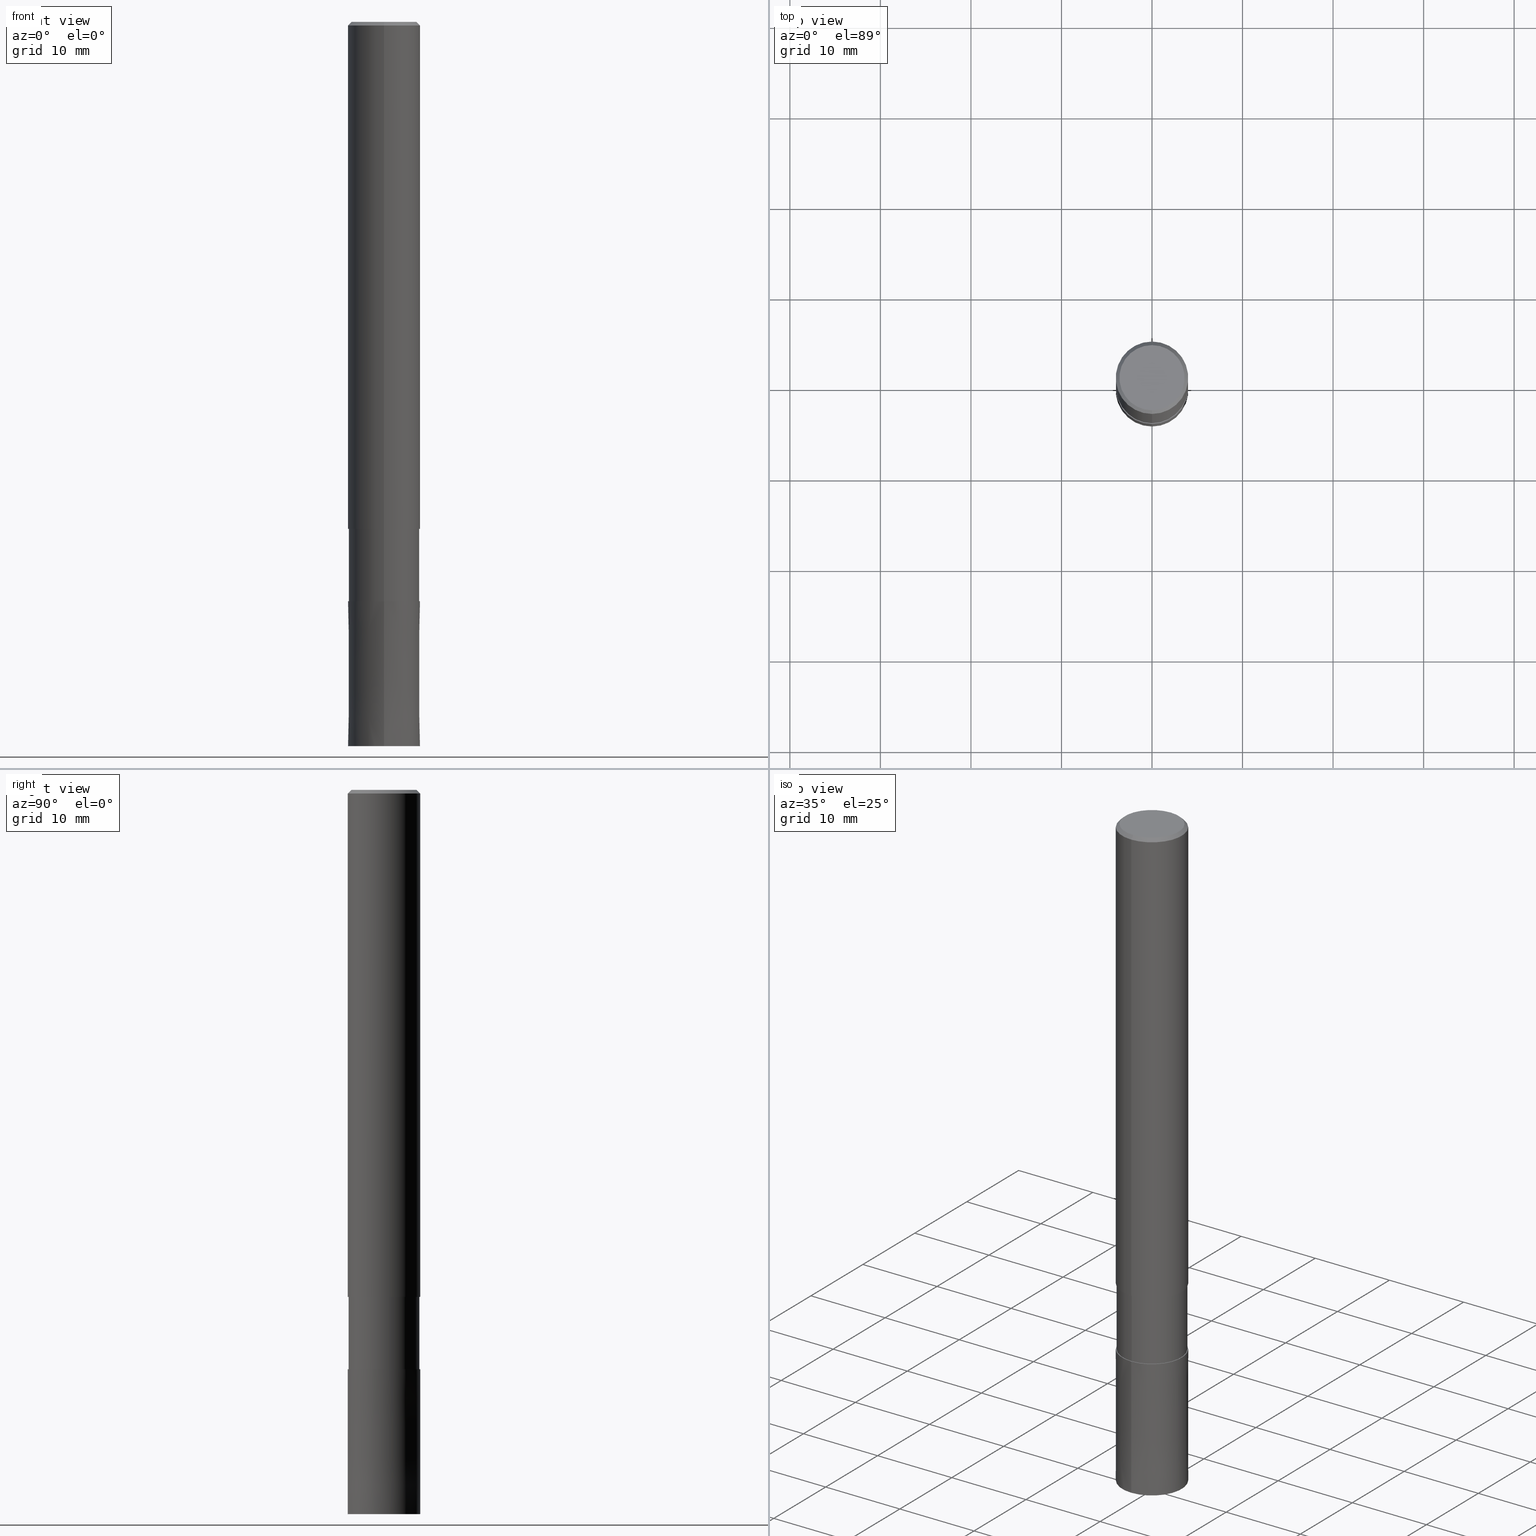
[diagram: canonical four-view strip — front | top / right | iso, engineering-drawing reading convention]
A machine part, canonical four-view strip (front | top / right | iso — engineering-drawing reading convention). The complete STEP part file that produces these views, byte-faithful:
ISO-10303-21;
HEADER;
FILE_DESCRIPTION(('no description'),'unknown implementation level');
FILE_NAME('DLC-AZS3080-240-Huellk.stp','  ',('CIMSOURCE GmbH'),('CADClick - KiM GmbH - www.kimweb.de'),'unknown preprocess','ACIS','unknown authorization');
FILE_SCHEMA(('automotive_design'));
ENDSEC;
DATA;
#1=MECHANICAL_DESIGN_GEOMETRIC_PRESENTATION_REPRESENTATION(' ',(#14,#15,#16,#17,#18,#19,#20,#21,#22,#23,#24,#25,#26,#27,#28,#29,#30,#31,#32,#33,#34,#35,#36,#37,#38,#39,#40,#41,#42,#43,#44,#45,#46,#47,#48,#49,#50,#51,#52,#53,#54,#55,#56,#57,#58,#59,#60,#61,#62,#63,#64),#10);
#2=PRODUCT_DEFINITION_CONTEXT('',#65,'design');
#3=APPLICATION_PROTOCOL_DEFINITION('INTERNATIONAL STANDARD','automotive_design',1994,#65);
#4=PRODUCT_CATEGORY_RELATIONSHIP('NONE','NONE',#66,#67);
#5=SHAPE_DEFINITION_REPRESENTATION(#68,#69);
#6=PRODUCT_DEFINITION_CONTEXT('',#70,'design');
#7=APPLICATION_PROTOCOL_DEFINITION('INTERNATIONAL STANDARD','automotive_design',1994,#70);
#8=PRODUCT_CATEGORY_RELATIONSHIP('NONE','NONE',#71,#72);
#9=SHAPE_DEFINITION_REPRESENTATION(#73,#74);
#10= (GEOMETRIC_REPRESENTATION_CONTEXT(3)GLOBAL_UNCERTAINTY_ASSIGNED_CONTEXT((#77))GLOBAL_UNIT_ASSIGNED_CONTEXT((#79,#80,#81))REPRESENTATION_CONTEXT('NONE','WORKSPACE'));
#14=STYLED_ITEM('',(#83),#84);
#15=STYLED_ITEM('',(#85),#86);
#16=STYLED_ITEM('',(#87),#88);
#17=STYLED_ITEM('',(#89),#90);
#18=STYLED_ITEM('',(#91),#92);
#19=STYLED_ITEM('',(#93),#94);
#20=STYLED_ITEM('',(#95),#96);
#21=STYLED_ITEM('',(#97),#98);
#22=STYLED_ITEM('',(#99),#100);
#23=STYLED_ITEM('',(#101),#102);
#24=STYLED_ITEM('',(#103),#104);
#25=STYLED_ITEM('',(#105),#106);
#26=STYLED_ITEM('',(#107),#108);
#27=STYLED_ITEM('',(#109),#110);
#28=STYLED_ITEM('',(#111),#112);
#29=STYLED_ITEM('',(#113),#114);
#30=STYLED_ITEM('',(#115),#116);
#31=STYLED_ITEM('',(#117),#118);
#32=STYLED_ITEM('',(#119),#120);
#33=STYLED_ITEM('',(#121),#122);
#34=STYLED_ITEM('',(#123),#124);
#35=STYLED_ITEM('',(#125),#126);
#36=STYLED_ITEM('',(#127),#128);
#37=STYLED_ITEM('',(#129),#130);
#38=STYLED_ITEM('',(#131),#132);
#39=STYLED_ITEM('',(#133),#134);
#40=STYLED_ITEM('',(#135),#136);
#41=STYLED_ITEM('',(#137),#138);
#42=STYLED_ITEM('',(#139),#140);
#43=STYLED_ITEM('',(#141),#142);
#44=STYLED_ITEM('',(#143),#144);
#45=STYLED_ITEM('',(#145),#146);
#46=STYLED_ITEM('',(#147),#148);
#47=STYLED_ITEM('',(#149),#150);
#48=STYLED_ITEM('',(#151),#152);
#49=STYLED_ITEM('',(#153),#154);
#50=STYLED_ITEM('',(#155),#156);
#51=STYLED_ITEM('',(#157),#158);
#52=STYLED_ITEM('',(#159),#160);
#53=STYLED_ITEM('',(#161),#162);
#54=STYLED_ITEM('',(#163),#164);
#55=STYLED_ITEM('',(#165),#166);
#56=STYLED_ITEM('',(#167),#168);
#57=STYLED_ITEM('',(#169),#170);
#58=STYLED_ITEM('',(#171),#172);
#59=STYLED_ITEM('',(#173),#174);
#60=STYLED_ITEM('',(#175),#176);
#61=STYLED_ITEM('',(#177),#178);
#62=STYLED_ITEM('',(#179),#180);
#63=STYLED_ITEM('',(#181),#182);
#64=STYLED_ITEM('',(#183),#184);
#65=APPLICATION_CONTEXT(' ');
#66=PRODUCT_CATEGORY('part','NONE');
#67=PRODUCT_RELATED_PRODUCT_CATEGORY('detail',' ',(#185));
#68=PRODUCT_DEFINITION_SHAPE('NONE','NONE',#186);
#69=ADVANCED_BREP_SHAPE_REPRESENTATION('1',(#110,#187),#10);
#70=APPLICATION_CONTEXT(' ');
#71=PRODUCT_CATEGORY('part','NONE');
#72=PRODUCT_RELATED_PRODUCT_CATEGORY('detail',' ',(#188));
#73=PRODUCT_DEFINITION_SHAPE('NONE','NONE',#189);
#74=ADVANCED_BREP_SHAPE_REPRESENTATION('2',(#184,#190),#10);
#77=UNCERTAINTY_MEASURE_WITH_UNIT(LENGTH_MEASURE(1.0E-006),#79,'','');
#79= (CONVERSION_BASED_UNIT('MILLIMETRE',#193)LENGTH_UNIT()NAMED_UNIT(#196));
#80= (NAMED_UNIT(#198)PLANE_ANGLE_UNIT()SI_UNIT($,.RADIAN.));
#81= (NAMED_UNIT(#198)SOLID_ANGLE_UNIT()SI_UNIT($,.STERADIAN.));
#83=PRESENTATION_STYLE_ASSIGNMENT((#204));
#84=VERTEX_POINT('',#205);
#85=PRESENTATION_STYLE_ASSIGNMENT((#206));
#86=EDGE_CURVE('',#124,#156,#207,.T.);
#87=PRESENTATION_STYLE_ASSIGNMENT((#208));
#88=VERTEX_POINT('',#209);
#89=PRESENTATION_STYLE_ASSIGNMENT((#210));
#90=EDGE_CURVE('',#124,#88,#211,.T.);
#91=PRESENTATION_STYLE_ASSIGNMENT((#212));
#92=EDGE_CURVE('',#126,#116,#213,.T.);
#93=PRESENTATION_STYLE_ASSIGNMENT((#214));
#94=ADVANCED_FACE('',(#215),#216,.T.);
#95=PRESENTATION_STYLE_ASSIGNMENT((#217));
#96=ADVANCED_FACE('',(#218),#219,.T.);
#97=PRESENTATION_STYLE_ASSIGNMENT((#220));
#98=VERTEX_POINT('',#221);
#99=PRESENTATION_STYLE_ASSIGNMENT((#222));
#100=EDGE_CURVE('',#98,#114,#223,.T.);
#101=PRESENTATION_STYLE_ASSIGNMENT((#224));
#102=VERTEX_POINT('',#225);
#103=PRESENTATION_STYLE_ASSIGNMENT((#226));
#104=ADVANCED_FACE('',(#227),#228,.T.);
#105=PRESENTATION_STYLE_ASSIGNMENT((#229));
#106=EDGE_CURVE('',#114,#98,#230,.T.);
#107=PRESENTATION_STYLE_ASSIGNMENT((#231));
#108=ADVANCED_FACE('',(#232),#233,.T.);
#109=PRESENTATION_STYLE_ASSIGNMENT((#234));
#110=MANIFOLD_SOLID_BREP('1',#235);
#111=PRESENTATION_STYLE_ASSIGNMENT((#236));
#112=ADVANCED_FACE('',(#237),#238,.T.);
#113=PRESENTATION_STYLE_ASSIGNMENT((#239));
#114=VERTEX_POINT('',#240);
#115=PRESENTATION_STYLE_ASSIGNMENT((#241));
#116=VERTEX_POINT('',#242);
#117=PRESENTATION_STYLE_ASSIGNMENT((#243));
#118=EDGE_CURVE('',#116,#84,#244,.T.);
#119=PRESENTATION_STYLE_ASSIGNMENT((#245));
#120=ADVANCED_FACE('',(#246,#247),#248,.T.);
#121=PRESENTATION_STYLE_ASSIGNMENT((#249));
#122=EDGE_CURVE('',#102,#126,#250,.T.);
#123=PRESENTATION_STYLE_ASSIGNMENT((#251));
#124=VERTEX_POINT('',#252);
#125=PRESENTATION_STYLE_ASSIGNMENT((#253));
#126=VERTEX_POINT('',#254);
#127=PRESENTATION_STYLE_ASSIGNMENT((#255));
#128=EDGE_CURVE('',#154,#88,#256,.T.);
#129=PRESENTATION_STYLE_ASSIGNMENT((#257));
#130=VERTEX_POINT('',#258);
#131=PRESENTATION_STYLE_ASSIGNMENT((#259));
#132=ADVANCED_FACE('',(#260),#261,.T.);
#133=PRESENTATION_STYLE_ASSIGNMENT((#262));
#134=EDGE_CURVE('',#156,#130,#263,.T.);
#135=PRESENTATION_STYLE_ASSIGNMENT((#264));
#136=EDGE_CURVE('',#156,#154,#265,.T.);
#137=PRESENTATION_STYLE_ASSIGNMENT((#266));
#138=ADVANCED_FACE('',(#267),#268,.T.);
#139=PRESENTATION_STYLE_ASSIGNMENT((#269));
#140=EDGE_CURVE('',#88,#124,#270,.T.);
#141=PRESENTATION_STYLE_ASSIGNMENT((#271));
#142=ADVANCED_FACE('',(#272),#273,.T.);
#143=PRESENTATION_STYLE_ASSIGNMENT((#274));
#144=VERTEX_POINT('',#275);
#145=PRESENTATION_STYLE_ASSIGNMENT((#276));
#146=ADVANCED_FACE('',(#277),#278,.T.);
#147=PRESENTATION_STYLE_ASSIGNMENT((#279));
#148=EDGE_CURVE('',#154,#156,#280,.T.);
#149=PRESENTATION_STYLE_ASSIGNMENT((#281));
#150=EDGE_CURVE('',#130,#178,#282,.T.);
#151=PRESENTATION_STYLE_ASSIGNMENT((#283));
#152=ADVANCED_FACE('',(#284),#285,.T.);
#153=PRESENTATION_STYLE_ASSIGNMENT((#286));
#154=VERTEX_POINT('',#287);
#155=PRESENTATION_STYLE_ASSIGNMENT((#288));
#156=VERTEX_POINT('',#289);
#157=PRESENTATION_STYLE_ASSIGNMENT((#290));
#158=EDGE_CURVE('',#178,#154,#291,.T.);
#159=PRESENTATION_STYLE_ASSIGNMENT((#292));
#160=EDGE_CURVE('',#116,#126,#293,.T.);
#161=PRESENTATION_STYLE_ASSIGNMENT((#294));
#162=EDGE_CURVE('',#178,#130,#295,.T.);
#163=PRESENTATION_STYLE_ASSIGNMENT((#296));
#164=ADVANCED_FACE('',(#297),#298,.T.);
#165=PRESENTATION_STYLE_ASSIGNMENT((#299));
#166=ADVANCED_FACE('',(#300),#301,.T.);
#167=PRESENTATION_STYLE_ASSIGNMENT((#302));
#168=EDGE_CURVE('',#144,#98,#303,.T.);
#169=PRESENTATION_STYLE_ASSIGNMENT((#304));
#170=VERTEX_POINT('',#305);
#171=PRESENTATION_STYLE_ASSIGNMENT((#306));
#172=EDGE_CURVE('',#144,#170,#307,.T.);
#173=PRESENTATION_STYLE_ASSIGNMENT((#308));
#174=EDGE_CURVE('',#114,#170,#309,.T.);
#175=PRESENTATION_STYLE_ASSIGNMENT((#310));
#176=EDGE_CURVE('',#84,#102,#311,.T.);
#177=PRESENTATION_STYLE_ASSIGNMENT((#312));
#178=VERTEX_POINT('',#313);
#179=PRESENTATION_STYLE_ASSIGNMENT((#314));
#180=EDGE_CURVE('',#102,#84,#315,.T.);
#181=PRESENTATION_STYLE_ASSIGNMENT((#316));
#182=EDGE_CURVE('',#170,#144,#317,.T.);
#183=PRESENTATION_STYLE_ASSIGNMENT((#318));
#184=MANIFOLD_SOLID_BREP('2',#319);
#185=PRODUCT('1','1','PART-1-DESC',(#320));
#186=PRODUCT_DEFINITION('NONE','NONE',#321,#2);
#187=AXIS2_PLACEMENT_3D('',#322,#323,#324);
#188=PRODUCT('2','2','PART-2-DESC',(#325));
#189=PRODUCT_DEFINITION('NONE','NONE',#326,#6);
#190=AXIS2_PLACEMENT_3D('',#327,#328,#329);
#193=LENGTH_MEASURE_WITH_UNIT(LENGTH_MEASURE(1.0),#330);
#196=DIMENSIONAL_EXPONENTS(1.0,0.0,0.0,0.0,0.0,0.0,0.0);
#198=DIMENSIONAL_EXPONENTS(0.0,0.0,0.0,0.0,0.0,0.0,0.0);
#204=POINT_STYLE(' ',#331,POSITIVE_LENGTH_MEASURE(1.0E-006),#332);
#205=CARTESIAN_POINT('',(0.0,3.90995,-64.0));
#206=CURVE_STYLE('',#333,POSITIVE_LENGTH_MEASURE(1.0E-006),#334);
#207=LINE('',#335,#336);
#208=POINT_STYLE(' ',#337,POSITIVE_LENGTH_MEASURE(1.0E-006),#338);
#209=CARTESIAN_POINT('',(0.0,4.0,-56.0));
#210=CURVE_STYLE('',#339,POSITIVE_LENGTH_MEASURE(1.0E-006),#340);
#211=CIRCLE('',#341,4.0);
#212=CURVE_STYLE('',#342,POSITIVE_LENGTH_MEASURE(1.0E-006),#343);
#213=CIRCLE('',#344,3.90995);
#214=SURFACE_STYLE_USAGE(.BOTH.,#345);
#215=FACE_OUTER_BOUND('',#346,.T.);
#216=CYLINDRICAL_SURFACE('',#347,3.90995);
#217=SURFACE_STYLE_USAGE(.BOTH.,#348);
#218=FACE_OUTER_BOUND('',#349,.T.);
#219=CYLINDRICAL_SURFACE('',#350,4.0);
#220=POINT_STYLE(' ',#351,POSITIVE_LENGTH_MEASURE(1.0E-006),#352);
#221=CARTESIAN_POINT('',(0.0,4.0,-80.0));
#222=CURVE_STYLE('',#353,POSITIVE_LENGTH_MEASURE(1.0E-006),#354);
#223=CIRCLE('',#355,4.0);
#224=POINT_STYLE(' ',#356,POSITIVE_LENGTH_MEASURE(1.0E-006),#357);
#225=CARTESIAN_POINT('',(4.7881496131278E-016,-3.90995,-64.0));
#226=SURFACE_STYLE_USAGE(.BOTH.,#358);
#227=FACE_OUTER_BOUND('',#359,.T.);
#228=CONICAL_SURFACE('',#360,3.8,0.78539816339745);
#229=CURVE_STYLE('',#361,POSITIVE_LENGTH_MEASURE(1.0E-006),#362);
#230=CIRCLE('',#363,4.0);
#231=SURFACE_STYLE_USAGE(.BOTH.,#364);
#232=FACE_OUTER_BOUND('',#365,.T.);
#233=CONICAL_SURFACE('',#366,3.8,0.78539816339745);
#234=SURFACE_STYLE_USAGE(.BOTH.,#367);
#235=CLOSED_SHELL('',(#138,#132,#104,#120,#152,#108,#96,#94,#164));
#236=SURFACE_STYLE_USAGE(.BOTH.,#368);
#237=FACE_OUTER_BOUND('',#369,.T.);
#238=CONICAL_SURFACE('',#370,3.99995,6.24999999993181E-006);
#239=POINT_STYLE(' ',#371,POSITIVE_LENGTH_MEASURE(1.0E-006),#372);
#240=CARTESIAN_POINT('',(4.89842541528951E-016,-4.0,-80.0));
#241=POINT_STYLE(' ',#373,POSITIVE_LENGTH_MEASURE(1.0E-006),#374);
#242=CARTESIAN_POINT('',(0.0,3.90995,-56.0));
#243=CURVE_STYLE('',#375,POSITIVE_LENGTH_MEASURE(1.0E-006),#376);
#244=LINE('',#377,#378);
#245=SURFACE_STYLE_USAGE(.BOTH.,#379);
#246=FACE_OUTER_BOUND('',#380,.T.);
#247=FACE_BOUND('',#381,.T.);
#248=PLANE('',#382);
#249=CURVE_STYLE('',#383,POSITIVE_LENGTH_MEASURE(1.0E-006),#384);
#250=LINE('',#385,#386);
#251=POINT_STYLE(' ',#387,POSITIVE_LENGTH_MEASURE(1.0E-006),#388);
#252=CARTESIAN_POINT('',(4.89842541528951E-016,-4.0,-56.0));
#253=POINT_STYLE(' ',#389,POSITIVE_LENGTH_MEASURE(1.0E-006),#390);
#254=CARTESIAN_POINT('',(4.7881496131278E-016,-3.90995,-56.0));
#255=CURVE_STYLE('',#391,POSITIVE_LENGTH_MEASURE(1.0E-006),#392);
#256=LINE('',#393,#394);
#257=POINT_STYLE(' ',#395,POSITIVE_LENGTH_MEASURE(1.0E-006),#396);
#258=CARTESIAN_POINT('',(4.40858287376056E-016,-3.6,0.0));
#259=SURFACE_STYLE_USAGE(.BOTH.,#397);
#260=FACE_OUTER_BOUND('',#398,.T.);
#261=CYLINDRICAL_SURFACE('',#399,4.0);
#262=CURVE_STYLE('',#400,POSITIVE_LENGTH_MEASURE(1.0E-006),#401);
#263=LINE('',#402,#403);
#264=CURVE_STYLE('',#404,POSITIVE_LENGTH_MEASURE(1.0E-006),#405);
#265=CIRCLE('',#406,4.0);
#266=SURFACE_STYLE_USAGE(.BOTH.,#407);
#267=FACE_OUTER_BOUND('',#408,.T.);
#268=CYLINDRICAL_SURFACE('',#409,3.90995);
#269=CURVE_STYLE('',#410,POSITIVE_LENGTH_MEASURE(1.0E-006),#411);
#270=CIRCLE('',#412,4.0);
#271=SURFACE_STYLE_USAGE(.BOTH.,#413);
#272=FACE_OUTER_BOUND('',#414,.T.);
#273=PLANE('',#415);
#274=POINT_STYLE(' ',#416,POSITIVE_LENGTH_MEASURE(1.0E-006),#417);
#275=CARTESIAN_POINT('',(0.0,3.9999,-64.0));
#276=SURFACE_STYLE_USAGE(.BOTH.,#418);
#277=FACE_OUTER_BOUND('',#419,.T.);
#278=CONICAL_SURFACE('',#420,3.99995,6.24999999993181E-006);
#279=CURVE_STYLE('',#421,POSITIVE_LENGTH_MEASURE(1.0E-006),#422);
#280=CIRCLE('',#423,4.0);
#281=CURVE_STYLE('',#424,POSITIVE_LENGTH_MEASURE(1.0E-006),#425);
#282=CIRCLE('',#426,3.6);
#283=SURFACE_STYLE_USAGE(.BOTH.,#427);
#284=FACE_OUTER_BOUND('',#428,.T.);
#285=PLANE('',#429);
#286=POINT_STYLE(' ',#430,POSITIVE_LENGTH_MEASURE(1.0E-006),#431);
#287=CARTESIAN_POINT('',(0.0,4.0,-0.399999999999999));
#288=POINT_STYLE(' ',#432,POSITIVE_LENGTH_MEASURE(1.0E-006),#433);
#289=CARTESIAN_POINT('',(4.89842541528951E-016,-4.0,-0.399999999999999));
#290=CURVE_STYLE('',#434,POSITIVE_LENGTH_MEASURE(1.0E-006),#435);
#291=LINE('',#436,#437);
#292=CURVE_STYLE('',#438,POSITIVE_LENGTH_MEASURE(1.0E-006),#439);
#293=CIRCLE('',#440,3.90995);
#294=CURVE_STYLE('',#441,POSITIVE_LENGTH_MEASURE(1.0E-006),#442);
#295=CIRCLE('',#443,3.6);
#296=SURFACE_STYLE_USAGE(.BOTH.,#444);
#297=FACE_OUTER_BOUND('',#445,.T.);
#298=PLANE('',#446);
#299=SURFACE_STYLE_USAGE(.BOTH.,#447);
#300=FACE_OUTER_BOUND('',#448,.T.);
#301=PLANE('',#449);
#302=CURVE_STYLE('',#450,POSITIVE_LENGTH_MEASURE(1.0E-006),#451);
#303=LINE('',#452,#453);
#304=POINT_STYLE(' ',#454,POSITIVE_LENGTH_MEASURE(1.0E-006),#455);
#305=CARTESIAN_POINT('',(4.89830295465413E-016,-3.9999,-64.0));
#306=CURVE_STYLE('',#456,POSITIVE_LENGTH_MEASURE(1.0E-006),#457);
#307=CIRCLE('',#458,3.9999);
#308=CURVE_STYLE('',#459,POSITIVE_LENGTH_MEASURE(1.0E-006),#460);
#309=LINE('',#461,#462);
#310=CURVE_STYLE('',#463,POSITIVE_LENGTH_MEASURE(1.0E-006),#464);
#311=CIRCLE('',#465,3.90995);
#312=POINT_STYLE(' ',#466,POSITIVE_LENGTH_MEASURE(1.0E-006),#467);
#313=CARTESIAN_POINT('',(0.0,3.6,0.0));
#314=CURVE_STYLE('',#468,POSITIVE_LENGTH_MEASURE(1.0E-006),#469);
#315=CIRCLE('',#470,3.90995);
#316=CURVE_STYLE('',#471,POSITIVE_LENGTH_MEASURE(1.0E-006),#472);
#317=CIRCLE('',#473,3.9999);
#318=SURFACE_STYLE_USAGE(.BOTH.,#474);
#319=CLOSED_SHELL('',(#112,#142,#146,#166));
#320=PRODUCT_CONTEXT('',#65,'mechanical');
#321=PRODUCT_DEFINITION_FORMATION_WITH_SPECIFIED_SOURCE(' ','NONE',#185,.NOT_KNOWN.);
#322=CARTESIAN_POINT('',(0.0,0.0,0.0));
#323=DIRECTION('',(0.0,0.0,1.0));
#324=DIRECTION('',(1.0,0.0,0.0));
#325=PRODUCT_CONTEXT('',#70,'mechanical');
#326=PRODUCT_DEFINITION_FORMATION_WITH_SPECIFIED_SOURCE(' ','NONE',#188,.NOT_KNOWN.);
#327=CARTESIAN_POINT('',(0.0,0.0,0.0));
#328=DIRECTION('',(0.0,0.0,1.0));
#329=DIRECTION('',(1.0,0.0,0.0));
#330= (NAMED_UNIT(#196)LENGTH_UNIT()SI_UNIT(.MILLI.,.METRE.));
#331=PRE_DEFINED_MARKER('');
#332=COLOUR_RGB('',0.498039215803146,0.498039215803146,0.498039215803146);
#333=DRAUGHTING_PRE_DEFINED_CURVE_FONT('continuous');
#334=COLOUR_RGB('',0.498039215803146,0.498039215803146,0.498039215803146);
#335=CARTESIAN_POINT('',(4.89842541528951E-016,-4.0,-28.2));
#336=VECTOR('',#476,1.0);
#337=PRE_DEFINED_MARKER('');
#338=COLOUR_RGB('',0.498039215803146,0.498039215803146,0.498039215803146);
#339=DRAUGHTING_PRE_DEFINED_CURVE_FONT('continuous');
#340=COLOUR_RGB('',0.498039215803146,0.498039215803146,0.498039215803146);
#341=AXIS2_PLACEMENT_3D('',#477,#478,#479);
#342=DRAUGHTING_PRE_DEFINED_CURVE_FONT('continuous');
#343=COLOUR_RGB('',0.498039215803146,0.498039215803146,0.498039215803146);
#344=AXIS2_PLACEMENT_3D('',#480,#481,#482);
#345=SURFACE_SIDE_STYLE('',(#483));
#346=EDGE_LOOP('',(#484,#485,#486,#487));
#347=AXIS2_PLACEMENT_3D('',#488,#489,#490);
#348=SURFACE_SIDE_STYLE('',(#491));
#349=EDGE_LOOP('',(#492,#493,#494,#495));
#350=AXIS2_PLACEMENT_3D('',#496,#497,#498);
#351=PRE_DEFINED_MARKER('');
#352=COLOUR_RGB('',0.800000011920929,0.800000011920929,0.800000011920929);
#353=DRAUGHTING_PRE_DEFINED_CURVE_FONT('continuous');
#354=COLOUR_RGB('',0.800000011920929,0.800000011920929,0.800000011920929);
#355=AXIS2_PLACEMENT_3D('',#499,#500,#501);
#356=PRE_DEFINED_MARKER('');
#357=COLOUR_RGB('',0.498039215803146,0.498039215803146,0.498039215803146);
#358=SURFACE_SIDE_STYLE('',(#502));
#359=EDGE_LOOP('',(#503,#504,#505,#506));
#360=AXIS2_PLACEMENT_3D('',#507,#508,#509);
#361=DRAUGHTING_PRE_DEFINED_CURVE_FONT('continuous');
#362=COLOUR_RGB('',0.800000011920929,0.800000011920929,0.800000011920929);
#363=AXIS2_PLACEMENT_3D('',#510,#511,#512);
#364=SURFACE_SIDE_STYLE('',(#513));
#365=EDGE_LOOP('',(#514,#515,#516,#517));
#366=AXIS2_PLACEMENT_3D('',#518,#519,#520);
#367=SURFACE_SIDE_STYLE('',(#521));
#368=SURFACE_SIDE_STYLE('',(#522));
#369=EDGE_LOOP('',(#523,#524,#525,#526));
#370=AXIS2_PLACEMENT_3D('',#527,#528,#529);
#371=PRE_DEFINED_MARKER('');
#372=COLOUR_RGB('',0.800000011920929,0.800000011920929,0.800000011920929);
#373=PRE_DEFINED_MARKER('');
#374=COLOUR_RGB('',0.498039215803146,0.498039215803146,0.498039215803146);
#375=DRAUGHTING_PRE_DEFINED_CURVE_FONT('continuous');
#376=COLOUR_RGB('',0.498039215803146,0.498039215803146,0.498039215803146);
#377=CARTESIAN_POINT('',(-4.7881496131278E-016,3.90995,-60.0));
#378=VECTOR('',#530,1.0);
#379=SURFACE_SIDE_STYLE('',(#531));
#380=EDGE_LOOP('',(#532,#533));
#381=EDGE_LOOP('',(#534,#535));
#382=AXIS2_PLACEMENT_3D('',#536,#537,#538);
#383=DRAUGHTING_PRE_DEFINED_CURVE_FONT('continuous');
#384=COLOUR_RGB('',0.498039215803146,0.498039215803146,0.498039215803146);
#385=CARTESIAN_POINT('',(4.7881496131278E-016,-3.90995,-60.0));
#386=VECTOR('',#539,1.0);
#387=PRE_DEFINED_MARKER('');
#388=COLOUR_RGB('',0.498039215803146,0.498039215803146,0.498039215803146);
#389=PRE_DEFINED_MARKER('');
#390=COLOUR_RGB('',0.498039215803146,0.498039215803146,0.498039215803146);
#391=DRAUGHTING_PRE_DEFINED_CURVE_FONT('continuous');
#392=COLOUR_RGB('',0.498039215803146,0.498039215803146,0.498039215803146);
#393=CARTESIAN_POINT('',(-4.89842541528951E-016,4.0,-28.2));
#394=VECTOR('',#540,1.0);
#395=PRE_DEFINED_MARKER('');
#396=COLOUR_RGB('',0.498039215803146,0.498039215803146,0.498039215803146);
#397=SURFACE_SIDE_STYLE('',(#541));
#398=EDGE_LOOP('',(#542,#543,#544,#545));
#399=AXIS2_PLACEMENT_3D('',#546,#547,#548);
#400=DRAUGHTING_PRE_DEFINED_CURVE_FONT('continuous');
#401=COLOUR_RGB('',0.498039215803146,0.498039215803146,0.498039215803146);
#402=CARTESIAN_POINT('',(4.65350414452503E-016,-3.8,-0.200000000000003));
#403=VECTOR('',#549,1.0);
#404=DRAUGHTING_PRE_DEFINED_CURVE_FONT('continuous');
#405=COLOUR_RGB('',0.498039215803146,0.498039215803146,0.498039215803146);
#406=AXIS2_PLACEMENT_3D('',#550,#551,#552);
#407=SURFACE_SIDE_STYLE('',(#553));
#408=EDGE_LOOP('',(#554,#555,#556,#557));
#409=AXIS2_PLACEMENT_3D('',#558,#559,#560);
#410=DRAUGHTING_PRE_DEFINED_CURVE_FONT('continuous');
#411=COLOUR_RGB('',0.498039215803146,0.498039215803146,0.498039215803146);
#412=AXIS2_PLACEMENT_3D('',#561,#562,#563);
#413=SURFACE_SIDE_STYLE('',(#564));
#414=EDGE_LOOP('',(#565,#566));
#415=AXIS2_PLACEMENT_3D('',#567,#568,#569);
#416=PRE_DEFINED_MARKER('');
#417=COLOUR_RGB('',0.800000011920929,0.800000011920929,0.800000011920929);
#418=SURFACE_SIDE_STYLE('',(#570));
#419=EDGE_LOOP('',(#571,#572,#573,#574));
#420=AXIS2_PLACEMENT_3D('',#575,#576,#577);
#421=DRAUGHTING_PRE_DEFINED_CURVE_FONT('continuous');
#422=COLOUR_RGB('',0.498039215803146,0.498039215803146,0.498039215803146);
#423=AXIS2_PLACEMENT_3D('',#578,#579,#580);
#424=DRAUGHTING_PRE_DEFINED_CURVE_FONT('continuous');
#425=COLOUR_RGB('',0.498039215803146,0.498039215803146,0.498039215803146);
#426=AXIS2_PLACEMENT_3D('',#581,#582,#583);
#427=SURFACE_SIDE_STYLE('',(#584));
#428=EDGE_LOOP('',(#585,#586));
#429=AXIS2_PLACEMENT_3D('',#587,#588,#589);
#430=PRE_DEFINED_MARKER('');
#431=COLOUR_RGB('',0.498039215803146,0.498039215803146,0.498039215803146);
#432=PRE_DEFINED_MARKER('');
#433=COLOUR_RGB('',0.498039215803146,0.498039215803146,0.498039215803146);
#434=DRAUGHTING_PRE_DEFINED_CURVE_FONT('continuous');
#435=COLOUR_RGB('',0.498039215803146,0.498039215803146,0.498039215803146);
#436=CARTESIAN_POINT('',(-4.65350414452503E-016,3.8,-0.200000000000003));
#437=VECTOR('',#590,1.0);
#438=DRAUGHTING_PRE_DEFINED_CURVE_FONT('continuous');
#439=COLOUR_RGB('',0.498039215803146,0.498039215803146,0.498039215803146);
#440=AXIS2_PLACEMENT_3D('',#591,#592,#593);
#441=DRAUGHTING_PRE_DEFINED_CURVE_FONT('continuous');
#442=COLOUR_RGB('',0.498039215803146,0.498039215803146,0.498039215803146);
#443=AXIS2_PLACEMENT_3D('',#594,#595,#596);
#444=SURFACE_SIDE_STYLE('',(#597));
#445=EDGE_LOOP('',(#598,#599));
#446=AXIS2_PLACEMENT_3D('',#600,#601,#602);
#447=SURFACE_SIDE_STYLE('',(#603));
#448=EDGE_LOOP('',(#604,#605));
#449=AXIS2_PLACEMENT_3D('',#606,#607,#608);
#450=DRAUGHTING_PRE_DEFINED_CURVE_FONT('continuous');
#451=COLOUR_RGB('',0.800000011920929,0.800000011920929,0.800000011920929);
#452=CARTESIAN_POINT('',(-4.89836418497182E-016,3.99995,-72.0));
#453=VECTOR('',#609,1.0);
#454=PRE_DEFINED_MARKER('');
#455=COLOUR_RGB('',0.800000011920929,0.800000011920929,0.800000011920929);
#456=DRAUGHTING_PRE_DEFINED_CURVE_FONT('continuous');
#457=COLOUR_RGB('',0.800000011920929,0.800000011920929,0.800000011920929);
#458=AXIS2_PLACEMENT_3D('',#610,#611,#612);
#459=DRAUGHTING_PRE_DEFINED_CURVE_FONT('continuous');
#460=COLOUR_RGB('',0.800000011920929,0.800000011920929,0.800000011920929);
#461=CARTESIAN_POINT('',(4.89836418497182E-016,-3.99995,-72.0));
#462=VECTOR('',#613,1.0);
#463=DRAUGHTING_PRE_DEFINED_CURVE_FONT('continuous');
#464=COLOUR_RGB('',0.498039215803146,0.498039215803146,0.498039215803146);
#465=AXIS2_PLACEMENT_3D('',#614,#615,#616);
#466=PRE_DEFINED_MARKER('');
#467=COLOUR_RGB('',0.498039215803146,0.498039215803146,0.498039215803146);
#468=DRAUGHTING_PRE_DEFINED_CURVE_FONT('continuous');
#469=COLOUR_RGB('',0.498039215803146,0.498039215803146,0.498039215803146);
#470=AXIS2_PLACEMENT_3D('',#617,#618,#619);
#471=DRAUGHTING_PRE_DEFINED_CURVE_FONT('continuous');
#472=COLOUR_RGB('',0.800000011920929,0.800000011920929,0.800000011920929);
#473=AXIS2_PLACEMENT_3D('',#620,#621,#622);
#474=SURFACE_SIDE_STYLE('',(#623));
#476=DIRECTION('',(-0.0,-0.0,1.0));
#477=CARTESIAN_POINT('',(0.0,0.0,-56.0));
#478=DIRECTION('',(0.0,0.0,-1.0));
#479=DIRECTION('',(0.0,1.0,0.0));
#480=CARTESIAN_POINT('',(0.0,0.0,-56.0));
#481=DIRECTION('',(0.0,0.0,-1.0));
#482=DIRECTION('',(0.0,1.0,0.0));
#483=SURFACE_STYLE_FILL_AREA(#624);
#484=ORIENTED_EDGE('',*,*,#118,.T.);
#485=ORIENTED_EDGE('',*,*,#180,.F.);
#486=ORIENTED_EDGE('',*,*,#122,.T.);
#487=ORIENTED_EDGE('',*,*,#92,.T.);
#488=CARTESIAN_POINT('',(0.0,0.0,-60.0));
#489=DIRECTION('',(-0.0,-0.0,1.0));
#490=DIRECTION('',(0.0,1.0,0.0));
#491=SURFACE_STYLE_FILL_AREA(#625);
#492=ORIENTED_EDGE('',*,*,#128,.T.);
#493=ORIENTED_EDGE('',*,*,#90,.F.);
#494=ORIENTED_EDGE('',*,*,#86,.T.);
#495=ORIENTED_EDGE('',*,*,#136,.T.);
#496=CARTESIAN_POINT('',(0.0,0.0,-28.2));
#497=DIRECTION('',(-0.0,-0.0,1.0));
#498=DIRECTION('',(0.0,1.0,0.0));
#499=CARTESIAN_POINT('',(0.0,0.0,-80.0));
#500=DIRECTION('',(0.0,0.0,-1.0));
#501=DIRECTION('',(0.0,1.0,0.0));
#502=SURFACE_STYLE_FILL_AREA(#626);
#503=ORIENTED_EDGE('',*,*,#158,.F.);
#504=ORIENTED_EDGE('',*,*,#162,.T.);
#505=ORIENTED_EDGE('',*,*,#134,.F.);
#506=ORIENTED_EDGE('',*,*,#148,.F.);
#507=CARTESIAN_POINT('',(0.0,0.0,-0.200000000000003));
#508=DIRECTION('',(0.0,-0.0,-1.0));
#509=DIRECTION('',(0.0,1.0,0.0));
#510=CARTESIAN_POINT('',(0.0,0.0,-80.0));
#511=DIRECTION('',(0.0,0.0,-1.0));
#512=DIRECTION('',(0.0,1.0,0.0));
#513=SURFACE_STYLE_FILL_AREA(#627);
#514=ORIENTED_EDGE('',*,*,#158,.T.);
#515=ORIENTED_EDGE('',*,*,#136,.F.);
#516=ORIENTED_EDGE('',*,*,#134,.T.);
#517=ORIENTED_EDGE('',*,*,#150,.T.);
#518=CARTESIAN_POINT('',(0.0,0.0,-0.200000000000003));
#519=DIRECTION('',(0.0,-0.0,-1.0));
#520=DIRECTION('',(0.0,1.0,0.0));
#521=SURFACE_STYLE_FILL_AREA(#628);
#522=SURFACE_STYLE_FILL_AREA(#629);
#523=ORIENTED_EDGE('',*,*,#168,.F.);
#524=ORIENTED_EDGE('',*,*,#172,.T.);
#525=ORIENTED_EDGE('',*,*,#174,.F.);
#526=ORIENTED_EDGE('',*,*,#100,.F.);
#527=CARTESIAN_POINT('',(0.0,0.0,-72.0));
#528=DIRECTION('',(0.0,-0.0,-1.0));
#529=DIRECTION('',(0.0,1.0,0.0));
#530=DIRECTION('',(0.0,0.0,-1.0));
#531=SURFACE_STYLE_FILL_AREA(#630);
#532=ORIENTED_EDGE('',*,*,#140,.T.);
#533=ORIENTED_EDGE('',*,*,#90,.T.);
#534=ORIENTED_EDGE('',*,*,#160,.F.);
#535=ORIENTED_EDGE('',*,*,#92,.F.);
#536=CARTESIAN_POINT('',(0.0,2.0,-56.0));
#537=DIRECTION('',(0.0,0.0,-1.0));
#538=DIRECTION('',(0.0,1.0,0.0));
#539=DIRECTION('',(-0.0,-0.0,1.0));
#540=DIRECTION('',(0.0,0.0,-1.0));
#541=SURFACE_STYLE_FILL_AREA(#631);
#542=ORIENTED_EDGE('',*,*,#128,.F.);
#543=ORIENTED_EDGE('',*,*,#148,.T.);
#544=ORIENTED_EDGE('',*,*,#86,.F.);
#545=ORIENTED_EDGE('',*,*,#140,.F.);
#546=CARTESIAN_POINT('',(0.0,0.0,-28.2));
#547=DIRECTION('',(-0.0,-0.0,1.0));
#548=DIRECTION('',(0.0,1.0,0.0));
#549=DIRECTION('',(-8.65927457071937E-017,0.707106781186549,0.707106781186546));
#550=CARTESIAN_POINT('',(0.0,0.0,-0.399999999999999));
#551=DIRECTION('',(0.0,0.0,-1.0));
#552=DIRECTION('',(0.0,1.0,0.0));
#553=SURFACE_STYLE_FILL_AREA(#632);
#554=ORIENTED_EDGE('',*,*,#118,.F.);
#555=ORIENTED_EDGE('',*,*,#160,.T.);
#556=ORIENTED_EDGE('',*,*,#122,.F.);
#557=ORIENTED_EDGE('',*,*,#176,.F.);
#558=CARTESIAN_POINT('',(0.0,0.0,-60.0));
#559=DIRECTION('',(-0.0,-0.0,1.0));
#560=DIRECTION('',(0.0,1.0,0.0));
#561=CARTESIAN_POINT('',(0.0,0.0,-56.0));
#562=DIRECTION('',(0.0,0.0,-1.0));
#563=DIRECTION('',(0.0,1.0,0.0));
#564=SURFACE_STYLE_FILL_AREA(#633);
#565=ORIENTED_EDGE('',*,*,#172,.F.);
#566=ORIENTED_EDGE('',*,*,#182,.F.);
#567=CARTESIAN_POINT('',(0.0,1.99995,-64.0));
#568=DIRECTION('',(-0.0,0.0,1.0));
#569=DIRECTION('',(0.0,-1.0,0.0));
#570=SURFACE_STYLE_FILL_AREA(#634);
#571=ORIENTED_EDGE('',*,*,#168,.T.);
#572=ORIENTED_EDGE('',*,*,#106,.F.);
#573=ORIENTED_EDGE('',*,*,#174,.T.);
#574=ORIENTED_EDGE('',*,*,#182,.T.);
#575=CARTESIAN_POINT('',(0.0,0.0,-72.0));
#576=DIRECTION('',(0.0,-0.0,-1.0));
#577=DIRECTION('',(0.0,1.0,0.0));
#578=CARTESIAN_POINT('',(0.0,0.0,-0.399999999999999));
#579=DIRECTION('',(0.0,0.0,-1.0));
#580=DIRECTION('',(0.0,1.0,0.0));
#581=CARTESIAN_POINT('',(0.0,0.0,0.0));
#582=DIRECTION('',(0.0,0.0,-1.0));
#583=DIRECTION('',(0.0,1.0,0.0));
#584=SURFACE_STYLE_FILL_AREA(#635);
#585=ORIENTED_EDGE('',*,*,#162,.F.);
#586=ORIENTED_EDGE('',*,*,#150,.F.);
#587=CARTESIAN_POINT('',(0.0,1.8,0.0));
#588=DIRECTION('',(-0.0,0.0,1.0));
#589=DIRECTION('',(0.0,-1.0,0.0));
#590=DIRECTION('',(-8.65927457071937E-017,0.707106781186549,-0.707106781186546));
#591=CARTESIAN_POINT('',(0.0,0.0,-56.0));
#592=DIRECTION('',(0.0,0.0,-1.0));
#593=DIRECTION('',(0.0,1.0,0.0));
#594=CARTESIAN_POINT('',(0.0,0.0,0.0));
#595=DIRECTION('',(0.0,0.0,-1.0));
#596=DIRECTION('',(0.0,1.0,0.0));
#597=SURFACE_STYLE_FILL_AREA(#636);
#598=ORIENTED_EDGE('',*,*,#176,.T.);
#599=ORIENTED_EDGE('',*,*,#180,.T.);
#600=CARTESIAN_POINT('',(0.0,1.954975,-64.0));
#601=DIRECTION('',(0.0,0.0,-1.0));
#602=DIRECTION('',(0.0,1.0,0.0));
#603=SURFACE_STYLE_FILL_AREA(#637);
#604=ORIENTED_EDGE('',*,*,#100,.T.);
#605=ORIENTED_EDGE('',*,*,#106,.T.);
#606=CARTESIAN_POINT('',(0.0,1.9975,-80.0));
#607=DIRECTION('',(0.0,0.0,-1.0));
#608=DIRECTION('',(0.0,1.0,0.0));
#609=DIRECTION('',(-7.65378971125652E-022,6.24999999989112E-006,-0.999999999980469));
#610=CARTESIAN_POINT('',(0.0,0.0,-64.0));
#611=DIRECTION('',(0.0,0.0,-1.0));
#612=DIRECTION('',(0.0,1.0,0.0));
#613=DIRECTION('',(-7.65378971125652E-022,6.24999999989112E-006,0.999999999980469));
#614=CARTESIAN_POINT('',(0.0,0.0,-64.0));
#615=DIRECTION('',(0.0,0.0,-1.0));
#616=DIRECTION('',(0.0,1.0,0.0));
#617=CARTESIAN_POINT('',(0.0,0.0,-64.0));
#618=DIRECTION('',(0.0,0.0,-1.0));
#619=DIRECTION('',(0.0,1.0,0.0));
#620=CARTESIAN_POINT('',(0.0,0.0,-64.0));
#621=DIRECTION('',(0.0,0.0,-1.0));
#622=DIRECTION('',(0.0,1.0,0.0));
#623=SURFACE_STYLE_FILL_AREA(#638);
#624=FILL_AREA_STYLE('',(#639));
#625=FILL_AREA_STYLE('',(#640));
#626=FILL_AREA_STYLE('',(#641));
#627=FILL_AREA_STYLE('',(#642));
#628=FILL_AREA_STYLE('',(#643));
#629=FILL_AREA_STYLE('',(#644));
#630=FILL_AREA_STYLE('',(#645));
#631=FILL_AREA_STYLE('',(#646));
#632=FILL_AREA_STYLE('',(#647));
#633=FILL_AREA_STYLE('',(#648));
#634=FILL_AREA_STYLE('',(#649));
#635=FILL_AREA_STYLE('',(#650));
#636=FILL_AREA_STYLE('',(#651));
#637=FILL_AREA_STYLE('',(#652));
#638=FILL_AREA_STYLE('',(#653));
#639=FILL_AREA_STYLE_COLOUR('',#654);
#640=FILL_AREA_STYLE_COLOUR('',#655);
#641=FILL_AREA_STYLE_COLOUR('',#656);
#642=FILL_AREA_STYLE_COLOUR('',#657);
#643=FILL_AREA_STYLE_COLOUR('',#658);
#644=FILL_AREA_STYLE_COLOUR('',#659);
#645=FILL_AREA_STYLE_COLOUR('',#660);
#646=FILL_AREA_STYLE_COLOUR('',#661);
#647=FILL_AREA_STYLE_COLOUR('',#662);
#648=FILL_AREA_STYLE_COLOUR('',#663);
#649=FILL_AREA_STYLE_COLOUR('',#664);
#650=FILL_AREA_STYLE_COLOUR('',#665);
#651=FILL_AREA_STYLE_COLOUR('',#666);
#652=FILL_AREA_STYLE_COLOUR('',#667);
#653=FILL_AREA_STYLE_COLOUR('',#668);
#654=COLOUR_RGB('',0.498039215803146,0.498039215803146,0.498039215803146);
#655=COLOUR_RGB('',0.498039215803146,0.498039215803146,0.498039215803146);
#656=COLOUR_RGB('',0.498039215803146,0.498039215803146,0.498039215803146);
#657=COLOUR_RGB('',0.498039215803146,0.498039215803146,0.498039215803146);
#658=COLOUR_RGB('',0.498039215803146,0.498039215803146,0.498039215803146);
#659=COLOUR_RGB('',0.800000011920929,0.800000011920929,0.800000011920929);
#660=COLOUR_RGB('',0.498039215803146,0.498039215803146,0.498039215803146);
#661=COLOUR_RGB('',0.498039215803146,0.498039215803146,0.498039215803146);
#662=COLOUR_RGB('',0.498039215803146,0.498039215803146,0.498039215803146);
#663=COLOUR_RGB('',0.800000011920929,0.800000011920929,0.800000011920929);
#664=COLOUR_RGB('',0.800000011920929,0.800000011920929,0.800000011920929);
#665=COLOUR_RGB('',0.498039215803146,0.498039215803146,0.498039215803146);
#666=COLOUR_RGB('',0.498039215803146,0.498039215803146,0.498039215803146);
#667=COLOUR_RGB('',0.800000011920929,0.800000011920929,0.800000011920929);
#668=COLOUR_RGB('',0.800000011920929,0.800000011920929,0.800000011920929);
#669=AXIS2_PLACEMENT_3D('PCS',#670,#671,#672);
#670=CARTESIAN_POINT('',(0.0,0.0,0.0));
#671=DIRECTION('',(0.0,0.0,1.0));
#672=DIRECTION('',(1.0,0.0,0.0));
#673=AXIS2_PLACEMENT_3D('CIP',#674,#675,#676);
#674=CARTESIAN_POINT('',(0.0,0.0,-80.0));
#675=DIRECTION('',(0.0,0.0,1.0));
#676=DIRECTION('',(1.0,0.0,0.0));
#677=AXIS2_PLACEMENT_3D('CRP',#678,#679,#680);
#678=CARTESIAN_POINT('',(-4.0,0.0,-80.0));
#679=DIRECTION('',(0.0,0.0,1.0));
#680=DIRECTION('',(1.0,0.0,0.0));
#681=AXIS2_PLACEMENT_3D('MCS',#682,#683,#684);
#682=CARTESIAN_POINT('',(0.0,0.0,-56.0));
#683=DIRECTION('',(0.0,0.0,1.0));
#684=DIRECTION('',(1.0,0.0,0.0));
#685=CONSTRUCTIVE_GEOMETRY_REPRESENTATION_RELATIONSHIP('coordinate systems',$,#69,#686);
#686=CONSTRUCTIVE_GEOMETRY_REPRESENTATION('coordinate systems',(#669,#673,#677,#681),#10);
ENDSEC;
END-ISO-10303-21;
